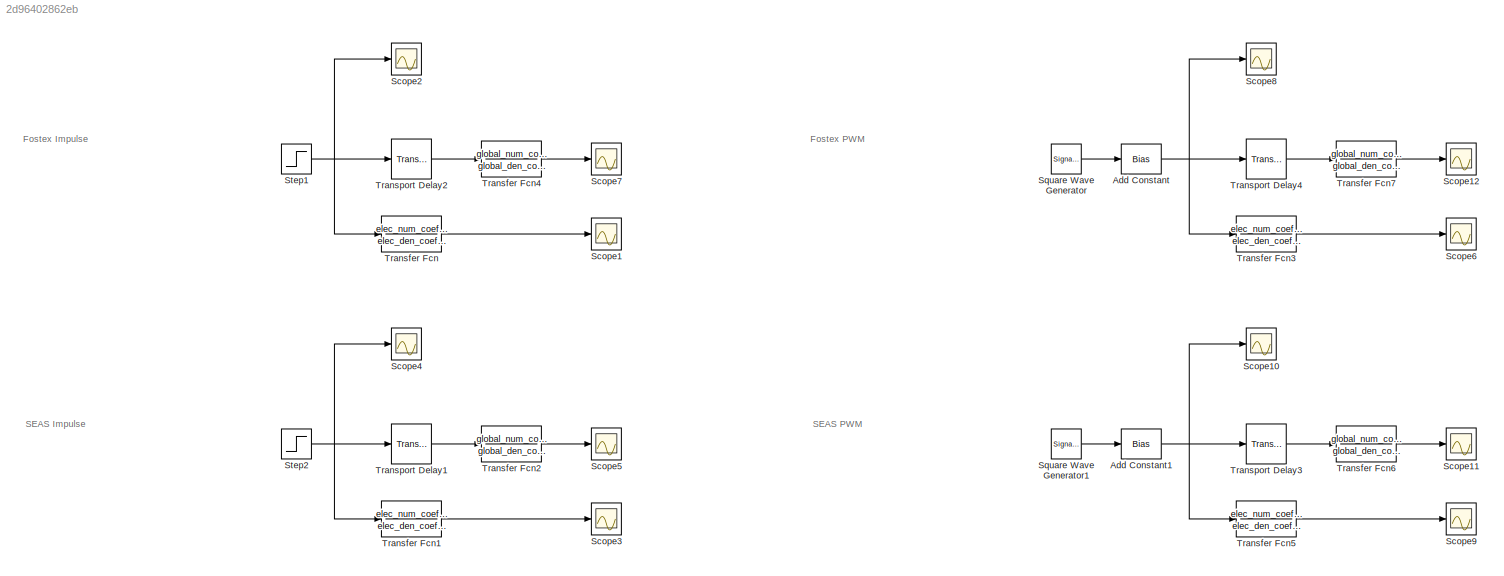
MODEL slx_2d96402862eb
KIND model
CONFIG AbsTol = auto
CONFIG EnableMultiTasking = off
CONFIG FixedStep = auto
CONFIG MaxStep = auto
CONFIG MinStep = auto
CONFIG RelTol = 1e-3
CONFIG SampleTimeConstraint = Unconstrained
CONFIG SolverName = VariableStepAuto
CONFIG StartTime = 0.0
CONFIG StopTime = 1
BLOCK [Bias] Add Constant
  Bias = 3.3/2
  SaturateOnIntegerOverflow = off
BLOCK [Bias] Add Constant1
  Bias = 3.3/2
  SaturateOnIntegerOverflow = off
BLOCK [Scope] Scope1
  Floating = off
  NumInputPorts = 1
  ScopeSpecificationString = Simulink.scopes.TimeScopeBlockCfg('CurrentConfiguration', extmgr.ConfigurationSet(extmgr.Configuration('Core','General UI',true),extmgr.Configuration('Core','Source UI',true),extmgr.Configuration('Sources','WiredSimulink',true),extmgr.Configuration('Visuals','Time Domain',true,'SerializedDisplays',{struct('MinYLimReal','-0.01266','MaxYLimReal','0.04788','YLabelReal','','MinYLimMag','0.00000','MaxY...<+1555ch>
BLOCK [Scope] Scope10
  Floating = off
  NumInputPorts = 1
  ScopeSpecificationString = Simulink.scopes.TimeScopeBlockCfg('CurrentConfiguration', extmgr.ConfigurationSet(extmgr.Configuration('Core','General UI',true),extmgr.Configuration('Core','Source UI',true),extmgr.Configuration('Sources','WiredSimulink',true,'DataLoggingVariableName','ScopeData6'),extmgr.Configuration('Visuals','Time Domain',true,'SerializedDisplays',{struct('MinYLimReal','-0.4125','MaxYLimReal','3.7125','YLabel...<+1536ch>
BLOCK [Scope] Scope11
  Floating = off
  NumInputPorts = 1
  ScopeSpecificationString = Simulink.scopes.TimeScopeBlockCfg('CurrentConfiguration', extmgr.ConfigurationSet(extmgr.Configuration('Core','General UI',true),extmgr.Configuration('Core','Source UI',true),extmgr.Configuration('Sources','WiredSimulink',true,'DataLoggingVariableName','ScopeData7'),extmgr.Configuration('Visuals','Time Domain',true,'SerializedDisplays',{struct('MinYLimReal','-0.07543','MaxYLimReal','0.08171','YLab...<+1550ch>
BLOCK [Scope] Scope12
  Floating = off
  NumInputPorts = 1
  ScopeSpecificationString = Simulink.scopes.TimeScopeBlockCfg('CurrentConfiguration', extmgr.ConfigurationSet(extmgr.Configuration('Core','General UI',true),extmgr.Configuration('Core','Source UI',true),extmgr.Configuration('Sources','WiredSimulink',true,'DataLoggingVariableName','ScopeData8'),extmgr.Configuration('Visuals','Time Domain',true,'SerializedDisplays',{struct('MinYLimReal','-0.18136','MaxYLimReal','0.17736','YLab...<+1550ch>
BLOCK [Scope] Scope2
  Floating = off
  NumInputPorts = 1
  ScopeSpecificationString = Simulink.scopes.TimeScopeBlockCfg('CurrentConfiguration', extmgr.ConfigurationSet(extmgr.Configuration('Core','General UI',true),extmgr.Configuration('Core','Source UI',true),extmgr.Configuration('Sources','WiredSimulink',true,'DataLoggingVariableName','ScopeData2'),extmgr.Configuration('Visuals','Time Domain',true,'SerializedDisplays',{struct('MinYLimReal','-0.4125','MaxYLimReal','3.7125','YLabel...<+1555ch>
BLOCK [Scope] Scope3
  Floating = off
  NumInputPorts = 1
  ScopeSpecificationString = Simulink.scopes.TimeScopeBlockCfg('CurrentConfiguration', extmgr.ConfigurationSet(extmgr.Configuration('Core','General UI',true),extmgr.Configuration('Core','Source UI',true),extmgr.Configuration('Sources','WiredSimulink',true,'DataLoggingVariableName','ScopeData3'),extmgr.Configuration('Visuals','Time Domain',true,'SerializedDisplays',{struct('MinYLimReal','-0.00954','MaxYLimReal','0.05118','YLab...<+1550ch>
BLOCK [Scope] Scope4
  Floating = off
  NumInputPorts = 1
  ScopeSpecificationString = Simulink.scopes.TimeScopeBlockCfg('CurrentConfiguration', extmgr.ConfigurationSet(extmgr.Configuration('Core','General UI',true),extmgr.Configuration('Core','Source UI',true),extmgr.Configuration('Sources','WiredSimulink',true,'DataLoggingVariableName','ScopeData4'),extmgr.Configuration('Visuals','Time Domain',true,'SerializedDisplays',{struct('MinYLimReal','-0.4125','MaxYLimReal','3.7125','YLabel...<+1536ch>
BLOCK [Scope] Scope5
  Floating = off
  NumInputPorts = 1
  ScopeSpecificationString = Simulink.scopes.TimeScopeBlockCfg('CurrentConfiguration', extmgr.ConfigurationSet(extmgr.Configuration('Core','General UI',true),extmgr.Configuration('Core','Source UI',true),extmgr.Configuration('Sources','WiredSimulink',true,'DataLoggingVariableName','ScopeData5'),extmgr.Configuration('Visuals','Time Domain',true,'SerializedDisplays',{struct('MinYLimReal','-0.10728','MaxYLimReal','0.08244','YLab...<+1550ch>
BLOCK [Scope] Scope6
  Floating = off
  NumInputPorts = 1
  ScopeSpecificationString = Simulink.scopes.TimeScopeBlockCfg('CurrentConfiguration', extmgr.ConfigurationSet(extmgr.Configuration('Core','General UI',true),extmgr.Configuration('Core','Source UI',true),extmgr.Configuration('Sources','WiredSimulink',true,'DataLoggingVariableName','ScopeData9'),extmgr.Configuration('Visuals','Time Domain',true,'SerializedDisplays',{struct('MinYLimReal','-0.03949','MaxYLimReal','0.08446','YLab...<+1596ch>
BLOCK [Scope] Scope7
  Floating = off
  NumInputPorts = 1
  ScopeSpecificationString = Simulink.scopes.TimeScopeBlockCfg('CurrentConfiguration', extmgr.ConfigurationSet(extmgr.Configuration('Core','General UI',true),extmgr.Configuration('Core','Source UI',true),extmgr.Configuration('Sources','WiredSimulink',true,'DataLoggingVariableName','ScopeData1'),extmgr.Configuration('Visuals','Time Domain',true,'SerializedDisplays',{struct('MinYLimReal','-0.25292','MaxYLimReal','0.15231','YLab...<+1550ch>
BLOCK [Scope] Scope8
  Floating = off
  NumInputPorts = 1
  ScopeSpecificationString = Simulink.scopes.TimeScopeBlockCfg('CurrentConfiguration', extmgr.ConfigurationSet(extmgr.Configuration('Core','General UI',true),extmgr.Configuration('Core','Source UI',true),extmgr.Configuration('Sources','WiredSimulink',true,'DataLoggingVariableName','ScopeData10'),extmgr.Configuration('Visuals','Time Domain',true,'SerializedDisplays',{struct('MinYLimReal','-0.4125','MaxYLimReal','3.7125','YLabe...<+1544ch>
BLOCK [Scope] Scope9
  Floating = off
  NumInputPorts = 1
  ScopeSpecificationString = Simulink.scopes.TimeScopeBlockCfg('CurrentConfiguration', extmgr.ConfigurationSet(extmgr.Configuration('Core','General UI',true),extmgr.Configuration('Core','Source UI',true),extmgr.Configuration('Sources','WiredSimulink',true,'DataLoggingVariableName','ScopeData11'),extmgr.Configuration('Visuals','Time Domain',true,'SerializedDisplays',{struct('MinYLimReal','-0.01812','MaxYLimReal','0.06356','YLa...<+1596ch>
BLOCK [SignalGenerator] Square Wave Generator
  Amplitude = 3.3/2
  Frequency = 100
  WaveForm = square
BLOCK [SignalGenerator] Square Wave Generator1
  Amplitude = 3.3/2
  Frequency = 100
  WaveForm = square
BLOCK [Step] Step1
  After = 0
  Before = 3.3
  SampleTime = 0
  Time = 0.01
  VectorParams1D = off
  ZeroCross = off
BLOCK [Step] Step2
  After = 0
  Before = 3.3
  SampleTime = 0
  Time = 0.01
  VectorParams1D = off
  ZeroCross = off
BLOCK [TransferFcn] Transfer Fcn
  ContinuousStateAttributes = 'He'
  Denominator = elec_den_coefs_Fostex
  Numerator = elec_num_coefs_Fostex
BLOCK [TransferFcn] Transfer Fcn1
  ContinuousStateAttributes = 'He'
  Denominator = elec_den_coefs_SEAS
  Numerator = elec_num_coefs_SEAS
BLOCK [TransferFcn] Transfer Fcn2
  ContinuousStateAttributes = 'He'
  Denominator = global_den_coefs_SEAS
  Numerator = global_num_coefs_SEAS
BLOCK [TransferFcn] Transfer Fcn3
  ContinuousStateAttributes = 'He'
  Denominator = elec_den_coefs_Fostex
  Numerator = elec_num_coefs_Fostex
BLOCK [TransferFcn] Transfer Fcn4
  ContinuousStateAttributes = 'He'
  Denominator = global_den_coefs_Fostex
  Numerator = global_num_coefs_Fostex
BLOCK [TransferFcn] Transfer Fcn5
  ContinuousStateAttributes = 'He'
  Denominator = elec_den_coefs_SEAS
  Numerator = elec_num_coefs_SEAS
BLOCK [TransferFcn] Transfer Fcn6
  ContinuousStateAttributes = 'He'
  Denominator = global_den_coefs_SEAS
  Numerator = global_num_coefs_SEAS
BLOCK [TransferFcn] Transfer Fcn7
  ContinuousStateAttributes = 'He'
  Denominator = global_den_coefs_Fostex
  Numerator = global_num_coefs_Fostex
BLOCK [TransportDelay] Transport Delay1
  BufferSize = 2048
  DelayTime = d/c
  TransDelayFeedthrough = on
BLOCK [TransportDelay] Transport Delay2
  BufferSize = 2048
  DelayTime = d/c
  TransDelayFeedthrough = on
BLOCK [TransportDelay] Transport Delay3
  BufferSize = 2048
  DelayTime = d/c
  TransDelayFeedthrough = on
BLOCK [TransportDelay] Transport Delay4
  BufferSize = 2048
  DelayTime = d/c
  TransDelayFeedthrough = on
ANNOTATION (root): Fostex Impulse
ANNOTATION (root): Fostex PWM
ANNOTATION (root): SEAS Impulse
ANNOTATION (root): SEAS PWM
NET Add Constant1:1 -> Scope10:1, Transfer Fcn5:1, Transport Delay3:1
NET Add Constant:1 -> Scope8:1, Transfer Fcn3:1, Transport Delay4:1
LINE Square Wave Generator1:1 -> Add Constant1:1
LINE Square Wave Generator:1 -> Add Constant:1
NET Step1:1 -> Scope2:1, Transfer Fcn:1, Transport Delay2:1
NET Step2:1 -> Scope4:1, Transfer Fcn1:1, Transport Delay1:1
LINE Transfer Fcn1:1 -> Scope3:1
LINE Transfer Fcn2:1 -> Scope5:1
LINE Transfer Fcn3:1 -> Scope6:1
LINE Transfer Fcn4:1 -> Scope7:1
LINE Transfer Fcn5:1 -> Scope9:1
LINE Transfer Fcn6:1 -> Scope11:1
LINE Transfer Fcn7:1 -> Scope12:1
LINE Transfer Fcn:1 -> Scope1:1
LINE Transport Delay1:1 -> Transfer Fcn2:1
LINE Transport Delay2:1 -> Transfer Fcn4:1
LINE Transport Delay3:1 -> Transfer Fcn6:1
LINE Transport Delay4:1 -> Transfer Fcn7:1
note: NET lines group one-source signal fan-out (src -> all destinations, sorted); 1:1 wires keep LINE
